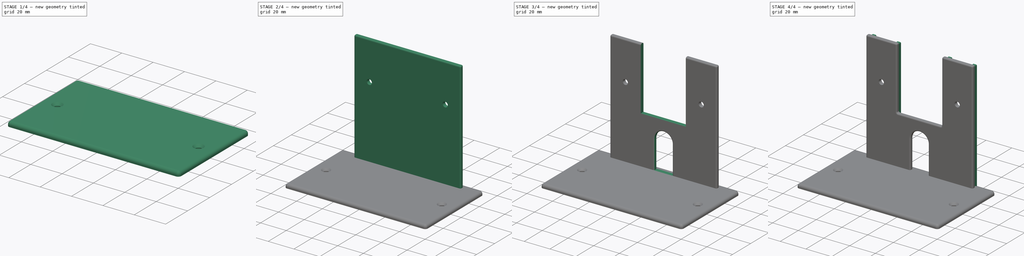
[diagram: build sequence overview — one tinted view per stage of 4, left to right]
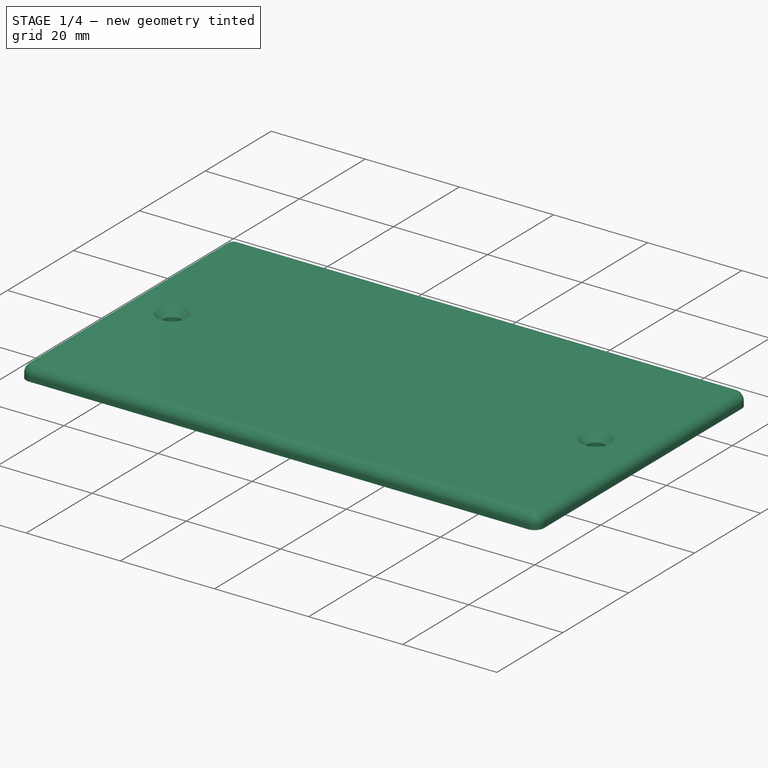
[diagram: stage 1 of 4 — iso view after this stage's code; geometry added in this stage tinted green]
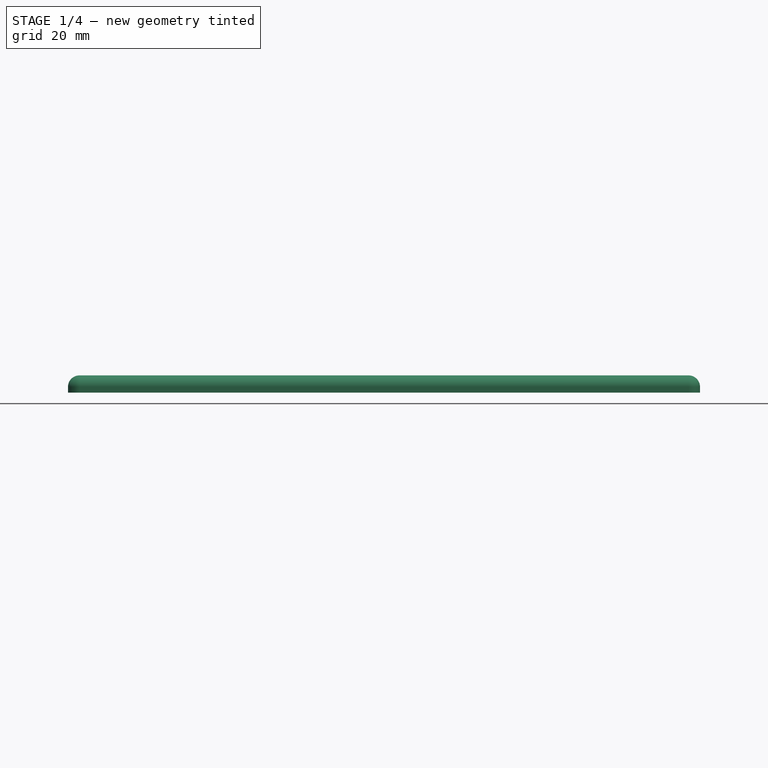
[diagram: stage 1 of 4 — front view after this stage's code; geometry added in this stage tinted green]
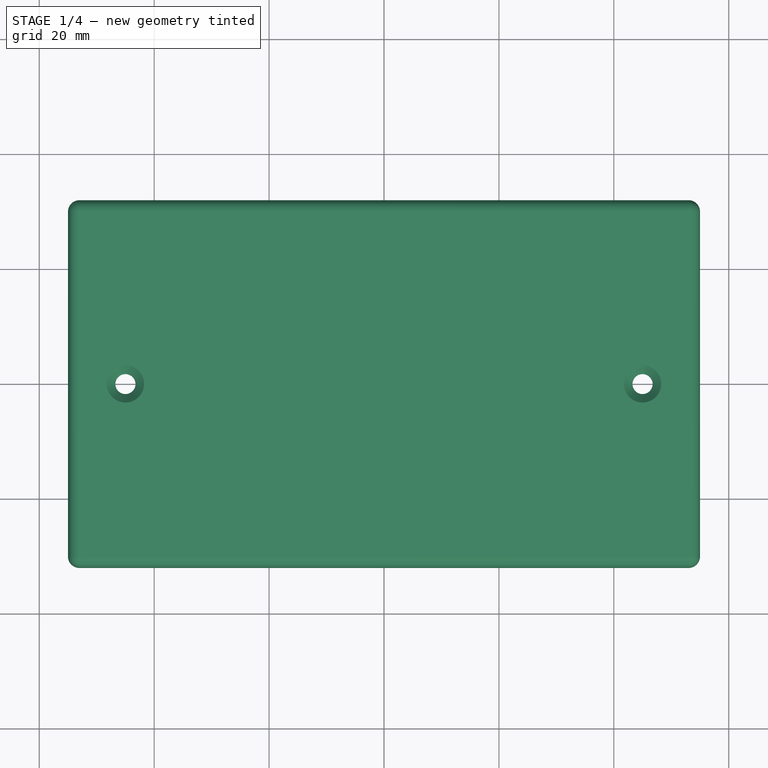
[diagram: stage 1 of 4 — top view after this stage's code; geometry added in this stage tinted green]
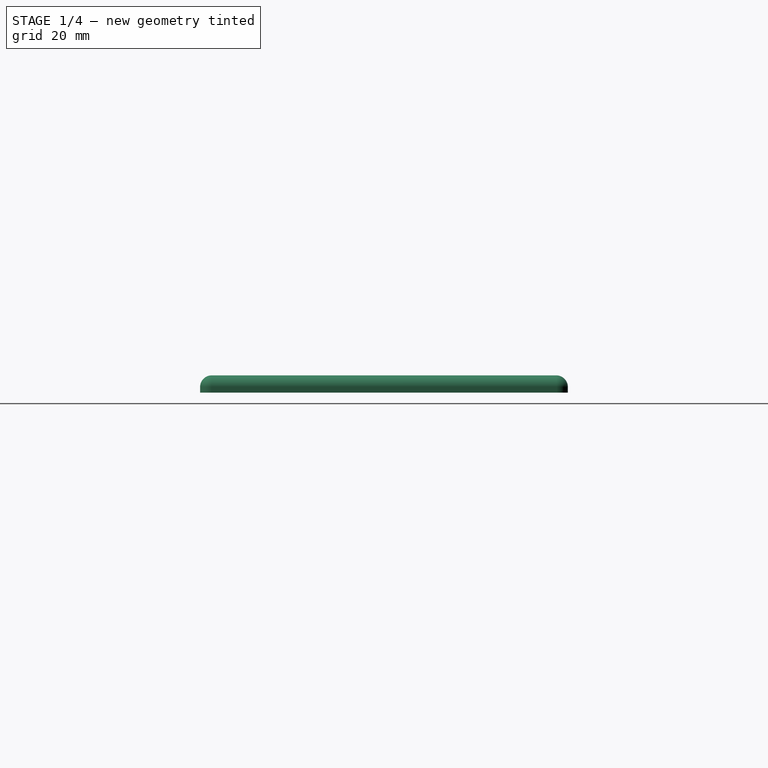
[diagram: stage 1 of 4 — right view after this stage's code; geometry added in this stage tinted green]
FCSTD DOCUMENT  (FreeCAD 0.21R33771 (Git))
Label: PenelopeStand
License: All rights reserved
LicenseURL: http://en.wikipedia.org/wiki/All_rights_reserved
objects: Sketcher::SketchObject×6, PartDesign::Fillet×5, PartDesign::Pad×3, PartDesign::Pocket×3, PartDesign::Chamfer×1, PartDesign::Body×1, App::Part×1
note: 31 computed .brp shape members not serialized (recipe doc carries the construction recipe); baked Part::Feature solids carry a one-line shape summary decoded from their .brp

FEATURE [Sketcher::SketchObject] Sketch  label="StandBodySketch"
  FullyConstrained = true
  MapMode = 5
  Support = -> [XY_Plane001]
  sketch-geometry (6):
    g0: LineSegment StartX=-55 StartY=32 StartZ=0 EndX=55 EndY=32 EndZ=0
    g1: LineSegment StartX=55 StartY=32 StartZ=0 EndX=55 EndY=-32 EndZ=0
    g2: LineSegment StartX=55 StartY=-32 StartZ=0 EndX=-55 EndY=-32 EndZ=0
    g3: LineSegment StartX=-55 StartY=-32 StartZ=0 EndX=-55 EndY=32 EndZ=0
    g4: Circle CenterX=-45 CenterY=0 CenterZ=0 NormalX=0 NormalY=0 NormalZ=1 AngleXU=0 Radius=1.75
    g5: Circle CenterX=45 CenterY=0 CenterZ=0 NormalX=0 NormalY=0 NormalZ=1 AngleXU=0 Radius=1.75
  constraints (17):
    c: Coincident(g0,g1)
    c: Coincident(g1,g2)
    c: Coincident(g2,g3)
    c: Coincident(g3,g0)
    c: Horizontal(g0)
    c: Horizontal(g2)
    c: Vertical(g1)
    c: Vertical(g3)
    c: Symmetric(g0,g2,g-1)
    c: DistanceX(g0,g0) = 110
    c: DistanceY(g3,g3) = 64
    c: PointOnObject(g4,g-1)
    c: PointOnObject(g5,g-1)
    c: Equal(g4,g5)
    c: Radius(g4) = 1.75
    c: DistanceX(g4,g-1) = 45
    c: DistanceX(g-1,g5) = 45
FEATURE [PartDesign::Pad] Pad
  Direction = (0,0,1)
  Length = 3
  Length2 = 10
  Profile = -> Sketch
  ReferenceAxis = -> Sketch [N_Axis]
  Type = 0
FEATURE [PartDesign::Chamfer] Chamfer  label="HoleChamfer"
  Angle = 45
  Base = -> Pad [Edge15,Edge18]
  BaseFeature = -> Pad
  ChamferType = 0
  FlipDirection = false
  Size = 1.5
  Size2 = 1
  SupportTransform = false
  UseAllEdges = false
FEATURE [PartDesign::Fillet] Fillet
  Base = -> Chamfer [Edge16,Edge11,Edge17,Edge12,Edge13,Edge14,Edge19,Edge18]
  BaseFeature = -> Chamfer
  Radius = 2
  SupportTransform = false
  UseAllEdges = false
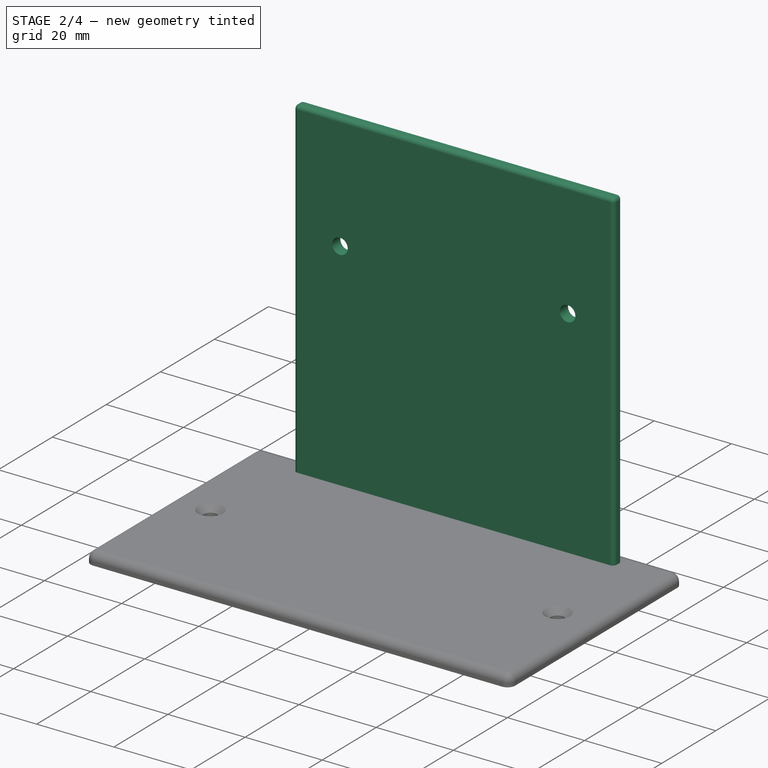
[diagram: stage 2 of 4 — iso view after this stage's code; geometry added in this stage tinted green]
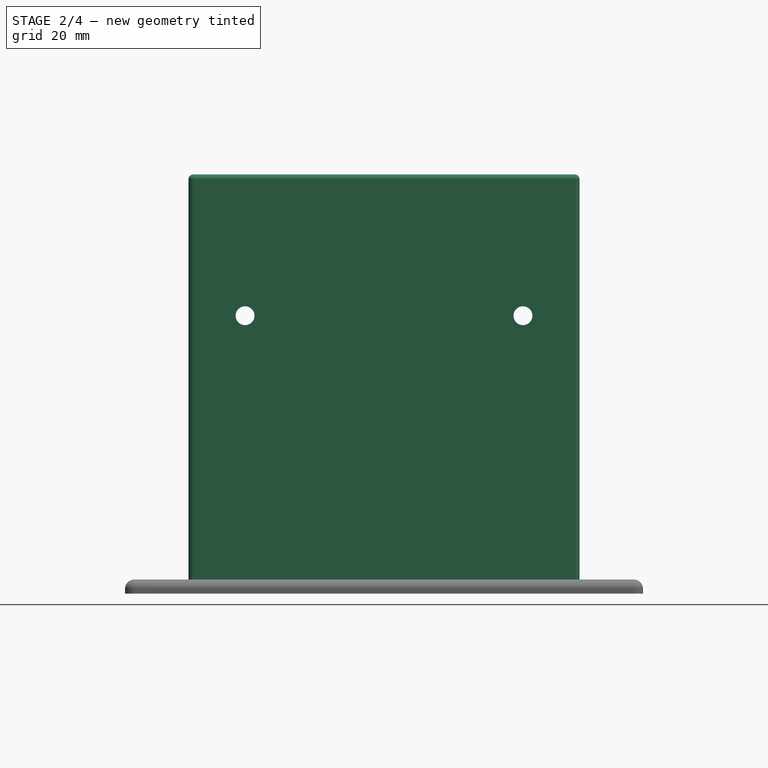
[diagram: stage 2 of 4 — front view after this stage's code; geometry added in this stage tinted green]
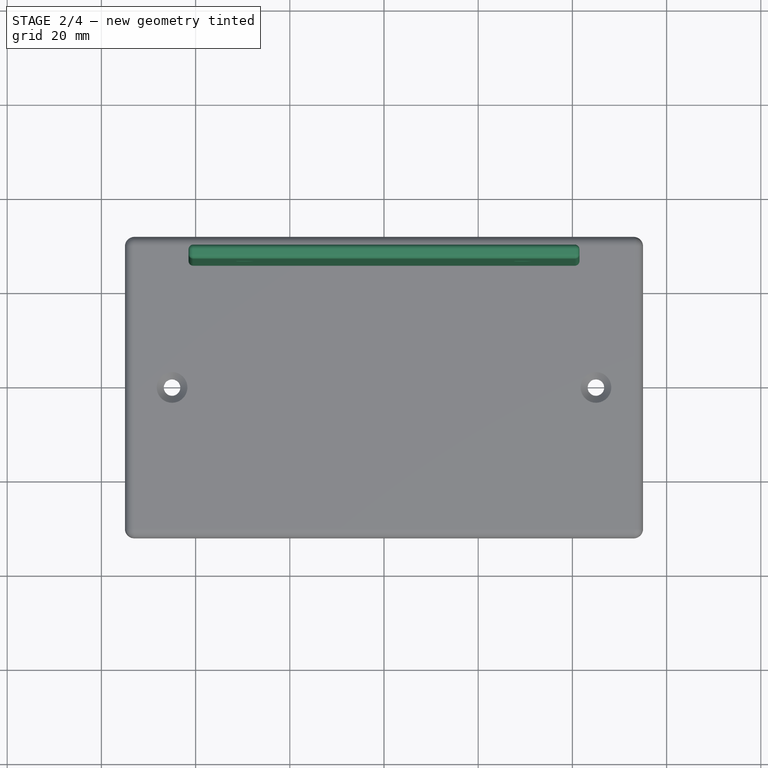
[diagram: stage 2 of 4 — top view after this stage's code; geometry added in this stage tinted green]
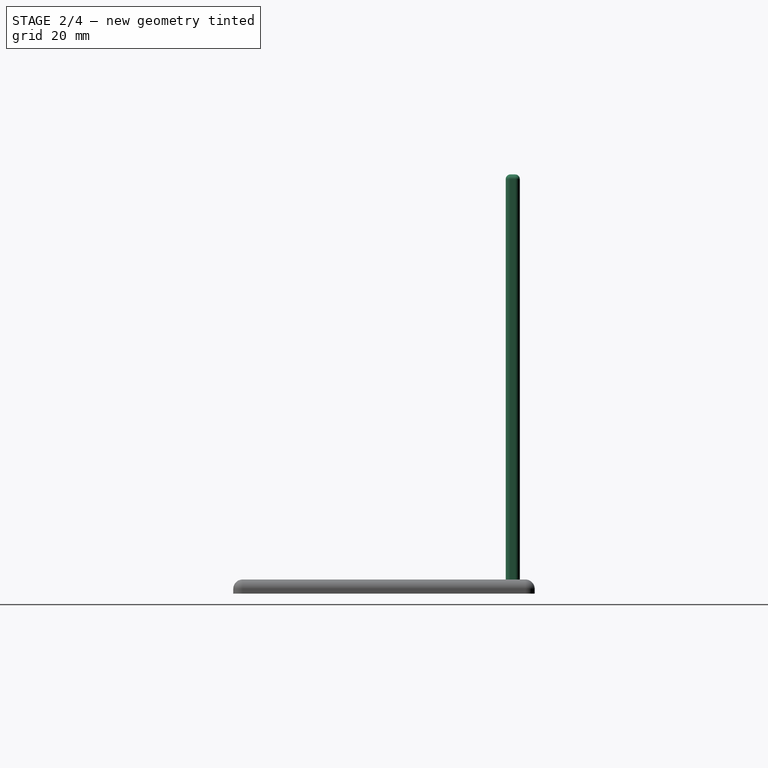
[diagram: stage 2 of 4 — right view after this stage's code; geometry added in this stage tinted green]
FEATURE [Sketcher::SketchObject] Sketch001
  FullyConstrained = true
  MapMode = 5
  Placement = pos=(0,0,3) rot=(0,0,1;0rad)
  Support = -> [Fillet]
  expr: Constraints[10] = 83 / 2
  sketch-geometry (4):
    g0: LineSegment StartX=-41.5 StartY=28.84 StartZ=0 EndX=41.5 EndY=28.84 EndZ=0
    g1: LineSegment StartX=41.5 StartY=28.84 StartZ=0 EndX=41.5 EndY=25.84 EndZ=0
    g2: LineSegment StartX=41.5 StartY=25.84 StartZ=0 EndX=-41.5 EndY=25.84 EndZ=0
    g3: LineSegment StartX=-41.5 StartY=25.84 StartZ=0 EndX=-41.5 EndY=28.84 EndZ=0
  constraints (12):
    c: Coincident(g0,g1)
    c: Coincident(g1,g2)
    c: Coincident(g2,g3)
    c: Coincident(g3,g0)
    c: Horizontal(g0)
    c: Horizontal(g2)
    c: Vertical(g1)
    c: Vertical(g3)
    c: DistanceX(g0,g0) = 83
    c: DistanceY(g1,g1) = 3
    c: DistanceX(g2,g-1) = 41.5
    c: DistanceY(g-1,g1) = 25.84
FEATURE [PartDesign::Pad] Pad001
  BaseFeature = -> Fillet
  Direction = (0,0,1)
  Length = 86
  Length2 = 10
  Profile = -> Sketch001
  ReferenceAxis = -> Sketch001 [N_Axis]
  Type = 0
FEATURE [PartDesign::Fillet] Fillet001
  Base = -> Pad001 [Edge55,Edge56,Edge57,Edge62,Edge59,Edge58,Edge60,Edge61]
  BaseFeature = -> Pad001
  Radius = 1
  SupportTransform = false
  UseAllEdges = false
FEATURE [Sketcher::SketchObject] Sketch002
  FullyConstrained = true
  MapMode = 5
  Placement = pos=(0,28.84,0) rot=(0,0.707107,0.707107;3.14159rad)
  Support = -> [Fillet001]
  expr: Constraints[2] = 83 / 2 - 12
  expr: Constraints[4] = 80 - 31 + 10
  expr: Constraints[5] = 59
  sketch-geometry (2):
    g0: Circle CenterX=-29.5 CenterY=59 CenterZ=0 NormalX=0 NormalY=0 NormalZ=1 AngleXU=0 Radius=2
    g1: Circle CenterX=29.5 CenterY=59 CenterZ=0 NormalX=0 NormalY=0 NormalZ=1 AngleXU=0 Radius=2
  constraints (6):
    c: Equal(g0,g1)
    c: Radius(g0) = 2
    c: DistanceX(g-1,g1) = 29.5
    c: DistanceX(g0,g-1) = 29.5
    c: DistanceY(g-1,g0) = 59
    c: DistanceY(g-1,g1) = 59
FEATURE [PartDesign::Pocket] Pocket
  BaseFeature = -> Fillet001
  Direction = (0,-1,2e-16)
  Length = 5
  Length2 = 5
  Profile = -> Sketch002
  ReferenceAxis = -> Sketch002 [N_Axis]
  Type = 0
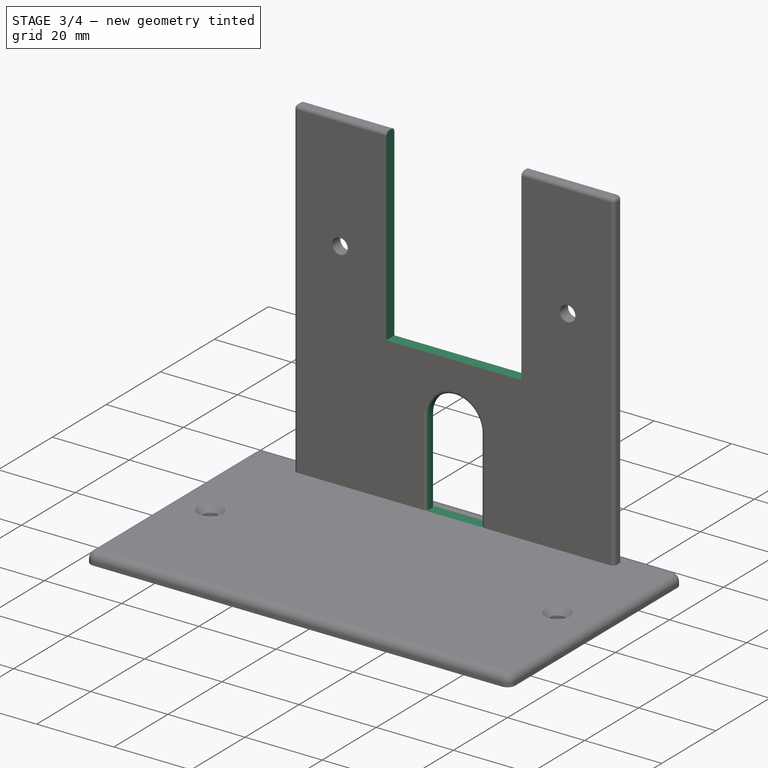
[diagram: stage 3 of 4 — iso view after this stage's code; geometry added in this stage tinted green]
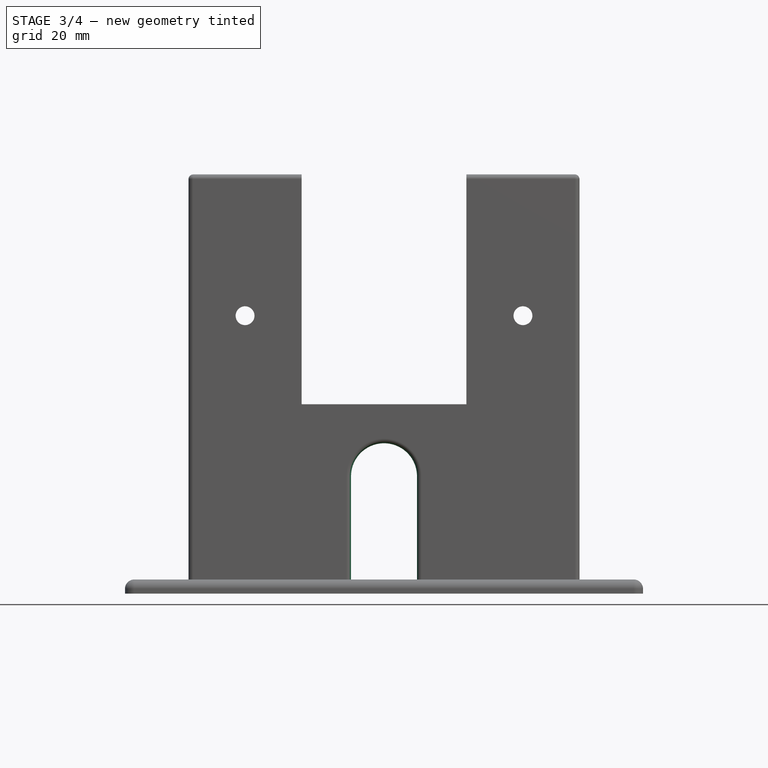
[diagram: stage 3 of 4 — front view after this stage's code; geometry added in this stage tinted green]
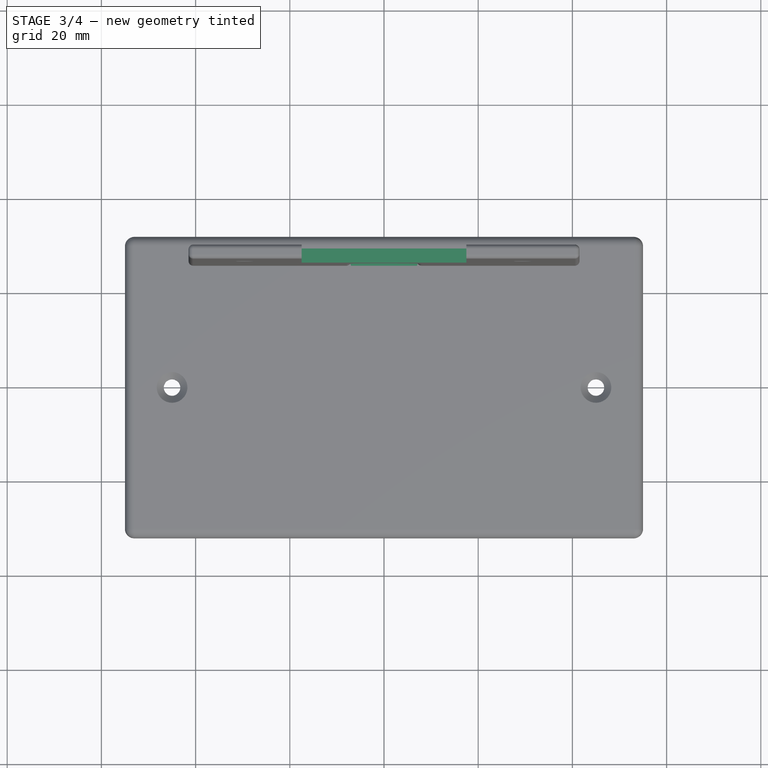
[diagram: stage 3 of 4 — top view after this stage's code; geometry added in this stage tinted green]
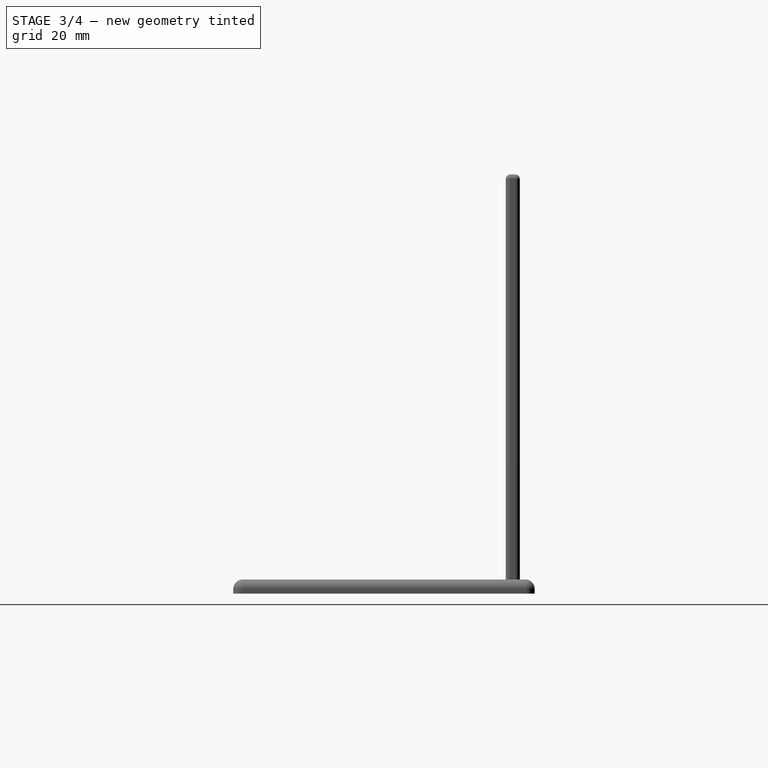
[diagram: stage 3 of 4 — right view after this stage's code; geometry added in this stage tinted green]
FEATURE [Sketcher::SketchObject] Sketch003
  FullyConstrained = true
  MapMode = 5
  Placement = pos=(0,25.84,0) rot=(1,0,0;1.5708rad)
  Support = -> [Pocket]
  sketch-geometry (4):
    g0: LineSegment StartX=7 StartY=24.84 StartZ=0 EndX=7 EndY=3 EndZ=0
    g1: LineSegment StartX=7 StartY=3 StartZ=0 EndX=-7 EndY=3 EndZ=0
    g2: LineSegment StartX=-7 StartY=3 StartZ=0 EndX=-7 EndY=24.84 EndZ=0
    g3: ArcOfCircle CenterX=4e-16 CenterY=24.92 CenterZ=0 NormalX=0 NormalY=0 NormalZ=1 AngleXU=0 Radius=7.00046 StartAngle=6.27176 EndAngle=9.43621
  constraints (13):
    c: Coincident(g0,g1)
    c: Coincident(g1,g2)
    c: Horizontal(g1)
    c: Vertical(g0)
    c: Vertical(g2)
    c: DistanceX(g2,g0) = 14
    c: DistanceY(g-1,g0) = 3
    c: DistanceY(g0,g0) = 21.84
    c: Coincident(g3,g2)
    c: Coincident(g3,g0)
    c: DistanceX(g3,g0) = 7
    c: DistanceY(g0,g3) = 21.92
    c: DistanceX(g1,g-1) = 7
FEATURE [PartDesign::Pocket] Pocket001
  BaseFeature = -> Pocket
  Direction = (0,1,-2e-16)
  Length = 5
  Length2 = 5
  Profile = -> Sketch003
  ReferenceAxis = -> Sketch003 [N_Axis]
  Type = 0
FEATURE [PartDesign::Fillet] Fillet002
  Base = -> Pocket001 [Edge25,Edge26,Edge24,Edge40,Edge41,Edge42]
  BaseFeature = -> Pocket001
  Radius = 1
  SupportTransform = false
  UseAllEdges = false
FEATURE [Sketcher::SketchObject] Sketch004
  FullyConstrained = true
  MapMode = 5
  Placement = pos=(0,28.84,0) rot=(0,0.707107,0.707107;3.14159rad)
  Support = -> [Fillet002]
  expr: Constraints[8] = 83 / 2 - 24
  sketch-geometry (4):
    g0: LineSegment StartX=-17.5 StartY=93.21 StartZ=0 EndX=17.5 EndY=93.21 EndZ=0
    g1: LineSegment StartX=17.5 StartY=93.21 StartZ=0 EndX=17.5 EndY=40.21 EndZ=0
    g2: LineSegment StartX=17.5 StartY=40.21 StartZ=0 EndX=-17.5 EndY=40.21 EndZ=0
    g3: LineSegment StartX=-17.5 StartY=40.21 StartZ=0 EndX=-17.5 EndY=93.21 EndZ=0
  constraints (12):
    c: Coincident(g0,g1)
    c: Coincident(g1,g2)
    c: Coincident(g2,g3)
    c: Coincident(g3,g0)
    c: Horizontal(g0)
    c: Horizontal(g2)
    c: Vertical(g1)
    c: Vertical(g3)
    c: DistanceX(g2,g-1) = 17.5
    c: DistanceX(g-1,g1) = 17.5
    c: DistanceY(g1,g1) = 53
    c: DistanceY(g-1,g1) = 40.21
FEATURE [PartDesign::Pocket] Pocket002
  BaseFeature = -> Fillet002
  Direction = (0,-1,2e-16)
  Length = 5
  Length2 = 5
  Profile = -> Sketch004
  ReferenceAxis = -> Sketch004 [N_Axis]
  Type = 0
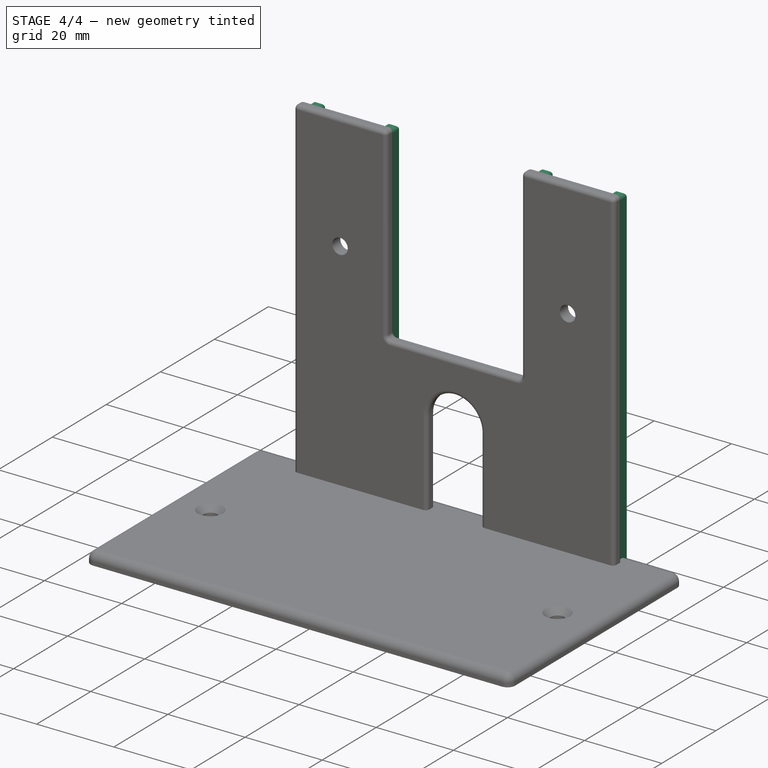
[diagram: stage 4 of 4 — iso view after this stage's code; geometry added in this stage tinted green]
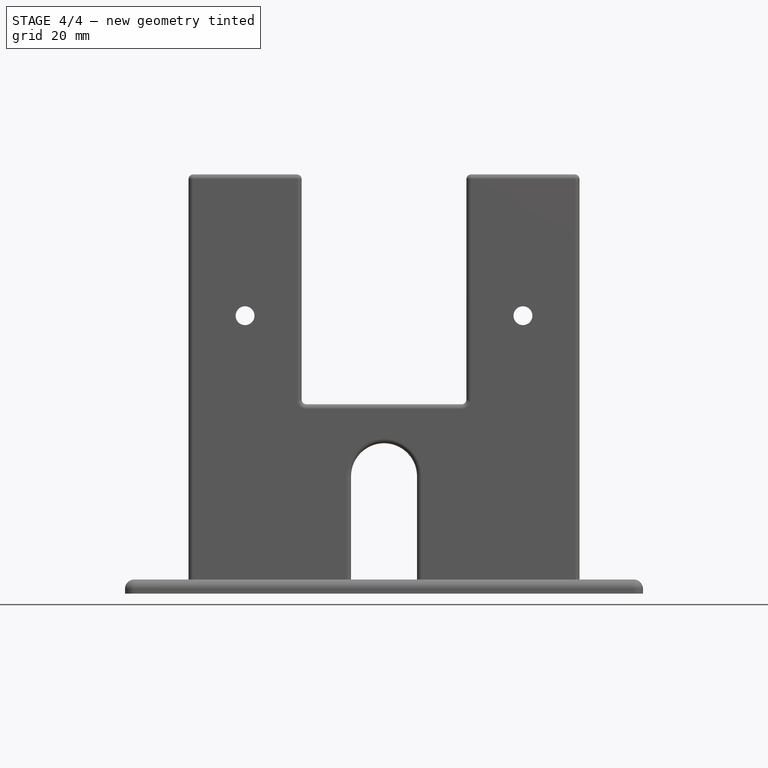
[diagram: stage 4 of 4 — front view after this stage's code; geometry added in this stage tinted green]
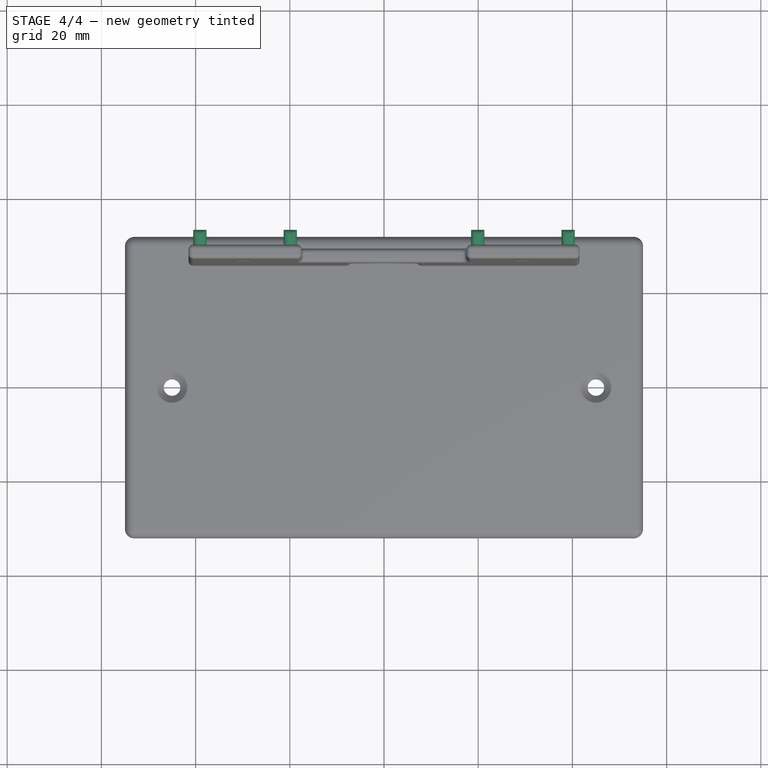
[diagram: stage 4 of 4 — top view after this stage's code; geometry added in this stage tinted green]
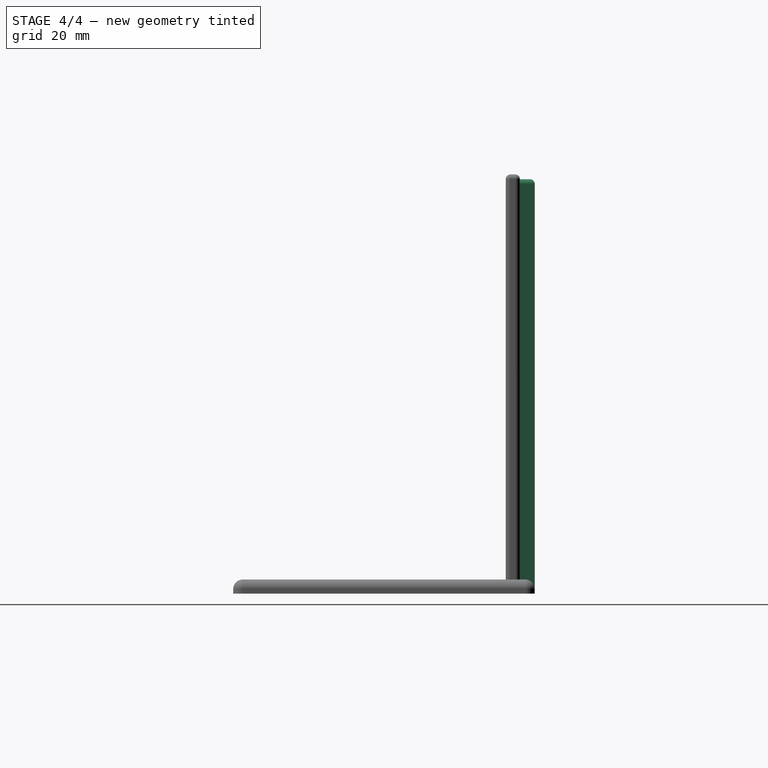
[diagram: stage 4 of 4 — right view after this stage's code; geometry added in this stage tinted green]
FEATURE [PartDesign::Fillet] Fillet003
  Base = -> Pocket002 [Edge56,Edge31,Edge91,Edge57,Edge30,Edge55,Edge95,Edge96,Edge93,Edge92,Edge90,Edge94,Edge32,Edge97]
  BaseFeature = -> Pocket002
  Radius = 1
  SupportTransform = false
  UseAllEdges = false
FEATURE [Sketcher::SketchObject] Sketch005
  FullyConstrained = true
  MapMode = 5
  Placement = pos=(0,28.84,0) rot=(0,0.707107,0.707107;3.14159rad)
  Support = -> [Fillet003]
  sketch-geometry (16):
    g0: LineSegment StartX=-40.5 StartY=87.98 StartZ=0 EndX=-37.7 EndY=87.98 EndZ=0
    g1: LineSegment StartX=-37.7 StartY=87.98 StartZ=0 EndX=-37.7 EndY=0 EndZ=0
    g2: LineSegment StartX=-37.7 StartY=0 StartZ=0 EndX=-40.5 EndY=0 EndZ=0
    g3: LineSegment StartX=-40.5 StartY=0 StartZ=0 EndX=-40.5 EndY=87.98 EndZ=0
    g4: LineSegment StartX=-21.31 StartY=87.98 StartZ=0 EndX=-18.51 EndY=87.98 EndZ=0
    g5: LineSegment StartX=-18.51 StartY=87.98 StartZ=0 EndX=-18.51 EndY=0 EndZ=0
    g6: LineSegment StartX=-18.51 StartY=0 StartZ=0 EndX=-21.31 EndY=0 EndZ=0
    g7: LineSegment StartX=-21.31 StartY=0 StartZ=0 EndX=-21.31 EndY=87.98 EndZ=0
    g8: LineSegment StartX=18.51 StartY=87.98 StartZ=0 EndX=21.31 EndY=87.98 EndZ=0
    g9: LineSegment StartX=21.31 StartY=87.98 StartZ=0 EndX=21.31 EndY=0 EndZ=0
    g10: LineSegment StartX=21.31 StartY=0 StartZ=0 EndX=18.51 EndY=0 EndZ=0
    g11: LineSegment StartX=18.51 StartY=0 StartZ=0 EndX=18.51 EndY=87.98 EndZ=0
    g12: LineSegment StartX=40.49 StartY=87.98 StartZ=0 EndX=37.69 EndY=87.98 EndZ=0
    g13: LineSegment StartX=37.69 StartY=87.98 StartZ=0 EndX=37.69 EndY=0 EndZ=0
    g14: LineSegment StartX=37.69 StartY=0 StartZ=0 EndX=40.49 EndY=0 EndZ=0
    g15: LineSegment StartX=40.49 StartY=0 StartZ=0 EndX=40.49 EndY=87.98 EndZ=0
  constraints (48):
    c: Coincident(g0,g1)
    c: Coincident(g1,g2)
    c: Coincident(g2,g3)
    c: Coincident(g3,g0)
    c: Horizontal(g0)
    c: Horizontal(g2)
    c: Vertical(g1)
    c: Vertical(g3)
    c: Coincident(g4,g5)
    c: Coincident(g5,g6)
    c: Coincident(g6,g7)
    c: Coincident(g7,g4)
    c: Horizontal(g4)
    c: Horizontal(g6)
    c: Vertical(g5)
    c: Vertical(g7)
    c: Coincident(g8,g9)
    c: Coincident(g9,g10)
    c: Coincident(g10,g11)
    c: Coincident(g11,g8)
    c: Horizontal(g8)
    c: Horizontal(g10)
    c: Vertical(g9)
    c: Vertical(g11)
    c: Coincident(g12,g13)
    c: Coincident(g13,g14)
    c: Coincident(g14,g15)
    c: Coincident(g15,g12)
    c: Horizontal(g12)
    c: Horizontal(g14)
    c: Vertical(g13)
    c: Vertical(g15)
    c: DistanceY(g13,g-1) = 0
    c: DistanceY(g-1,g10) = 0
    c: DistanceY(g-1,g5) = 0
    c: DistanceY(g-1,g1) = 0
    c: DistanceY(g1,g1) = 87.98
    c: DistanceY(g7,g7) = 87.98
    c: DistanceY(g11,g11) = 87.98
    c: DistanceY(g13,g13) = 87.98
    c: DistanceX(g0,g0) = 2.8
    c: DistanceX(g4,g4) = 2.8
    c: DistanceX(g8,g8) = 2.8
    c: DistanceX(g12,g12) = 2.8
    c: DistanceX(g1,g-1) = 37.7
    c: DistanceX(g5,g-1) = 18.51
    c: DistanceX(g-1,g10) = 18.51
    c: DistanceX(g-1,g13) = 37.69
FEATURE [PartDesign::Pad] Pad002
  BaseFeature = -> Fillet003
  Direction = (0,1,-2e-16)
  Length = 3.16
  Length2 = 10
  Profile = -> Sketch005
  ReferenceAxis = -> Sketch005 [N_Axis]
  Type = 0
FEATURE [PartDesign::Fillet] Fillet004
  Base = -> Pad002 [Edge94,Edge182,Edge181,Edge229,Edge230,Edge228,Edge222,Edge223,Edge221,Edge208,Edge209,Edge112]
  BaseFeature = -> Pad002
  Radius = 1
  SupportTransform = false
  UseAllEdges = false
FEATURE [PartDesign::Body] Body  label="StandBody"
  Group = -> [Sketch,Pad,Chamfer,Fillet,Sketch001,Pad001,Fillet001,Sketch002,Pocket,Sketch003,Pocket001,Fillet002,Sketch004,Pocket002,Fillet003,Sketch005,Pad002,Fillet004]
  Origin = -> Origin001
  Tip = -> Fillet004
FEATURE [App::Part] Part  label="StandPart"
  Group = -> [Body]
  Origin = -> Origin
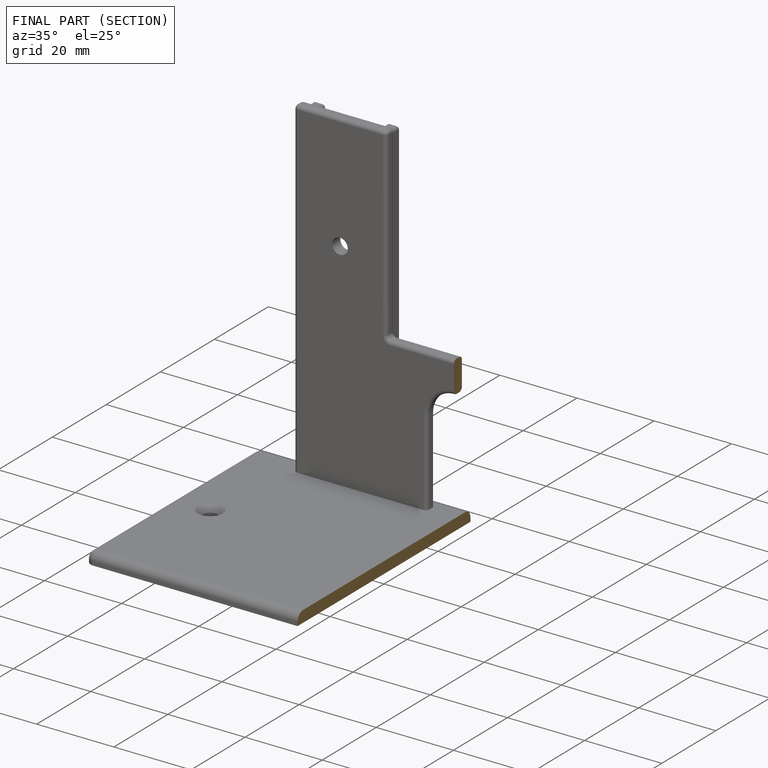
[diagram: finished part — half-section view (interior)]
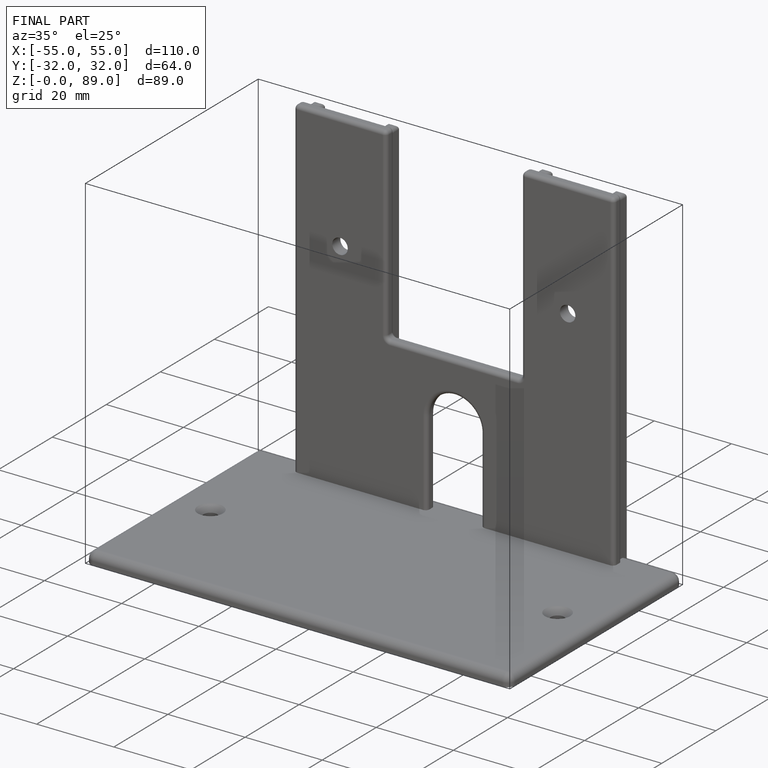
[diagram: finished part — iso view with bounding-box wireframe]
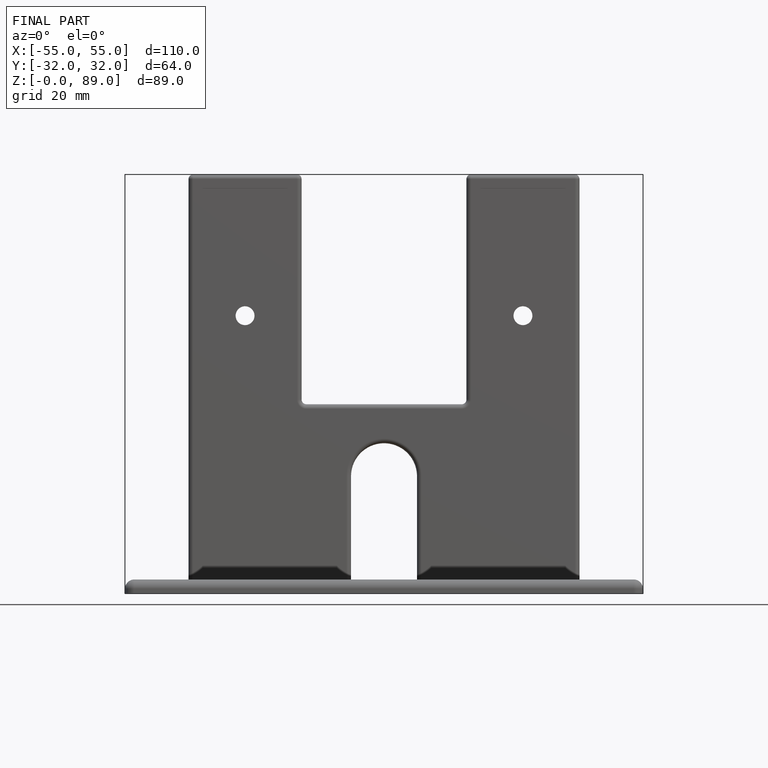
[diagram: finished part — front view with bounding-box wireframe]
